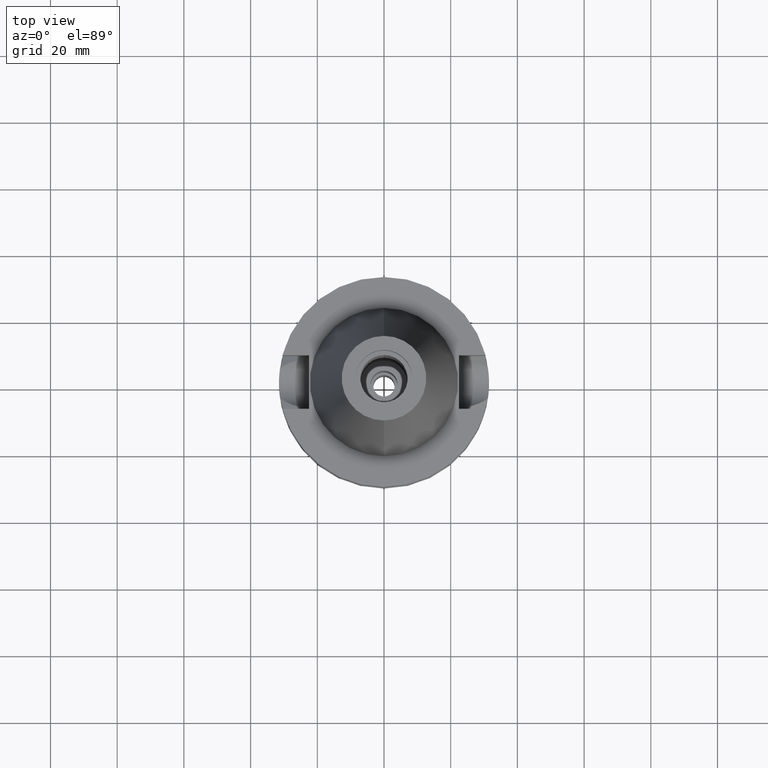
[diagram: clean part render]
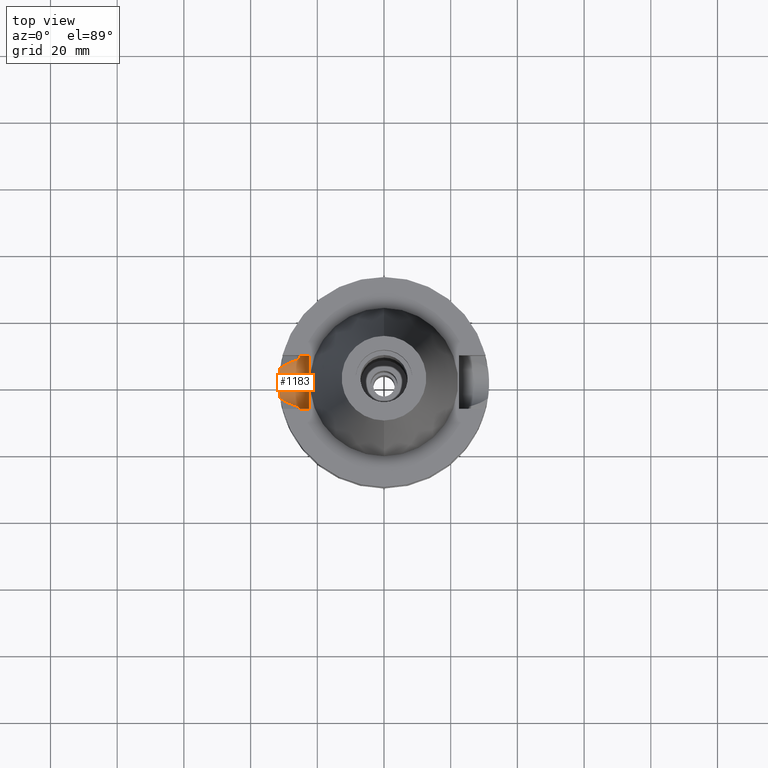
[diagram: same view with one face highlighted and labeled with its STEP entity id]
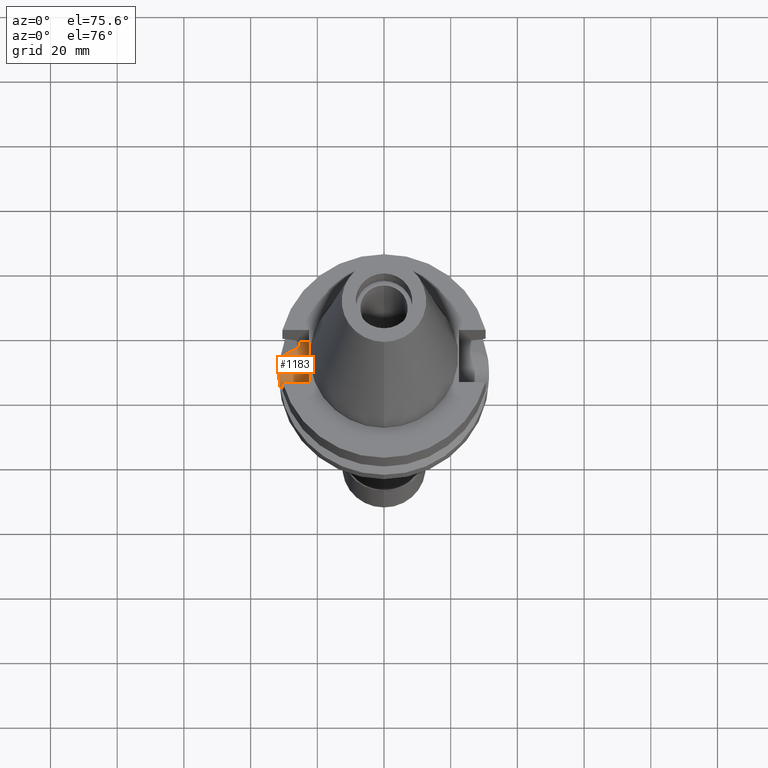
[diagram: same view with one face highlighted and labeled with its STEP entity id]
A machine part, top view. The second image highlights one B-rep face of the part: STEP entity #1183.
A second angle (auxiliary view) of the same face is appended — the face is thin or edge-on in the first view.
In plain terms, the highlighted cylindrical surface (edge-blend (fillet) strip) has radius 8.05 mm, axis along (-1, 0, 0).
Its self-contained STEP definition (entity closure, byte-faithful):
#34 = CARTESIAN_POINT ( 'NONE',  ( -25.31202500689251522, 7.845732311882787968, -16.75278555880698406 ) ) ;
#52 = CARTESIAN_POINT ( 'NONE',  ( -31.40766011978483974, 2.409778804354832271, -22.63088283290915115 ) ) ;
#69 = AXIS2_PLACEMENT_3D ( 'NONE', #1911, #2074, #151 ) ;
#89 = CARTESIAN_POINT ( 'NONE',  ( -26.75862585802038751, 6.731891531045216759, -19.37766896009286910 ) ) ;
#151 = DIRECTION ( 'NONE',  ( 0.0000000000000000000, 0.0000000000000000000, -1.000000000000000000 ) ) ;
#192 = VERTEX_POINT ( 'NONE', #3017 ) ;
#201 = CARTESIAN_POINT ( 'NONE',  ( -25.37569502941821042, -7.637838761646827734, -17.49780446132101730 ) ) ;
#215 = CARTESIAN_POINT ( 'NONE',  ( -28.98197667428420488, -5.817951271236802668, -20.51485518127156027 ) ) ;
#236 = CARTESIAN_POINT ( 'NONE',  ( -25.28048322354058541, 7.947042364867001218, -16.24399973113296980 ) ) ;
#239 = CARTESIAN_POINT ( 'NONE',  ( -31.28476021083076475, -3.750387644367529916, -22.12780550490815656 ) ) ;
#273 = VERTEX_POINT ( 'NONE', #2850 ) ;
#280 = CARTESIAN_POINT ( 'NONE',  ( -25.31950825842965358, 7.821518470898141118, -16.85441217852998008 ) ) ;
#294 = CARTESIAN_POINT ( 'NONE',  ( -31.44515274080385936, -1.858361164317119396, -22.78319744710115557 ) ) ;
#349 = ORIENTED_EDGE ( 'NONE', *, *, #2022, .T. ) ;
#386 = CARTESIAN_POINT ( 'NONE',  ( -25.48480632951354252, -7.266730117095977270, -18.43213421324911039 ) ) ;
#415 = AXIS2_PLACEMENT_3D ( 'NONE', #1358, #1137, #858 ) ;
#494 = CARTESIAN_POINT ( 'NONE',  ( -31.23235846142550187, 4.114632629751536541, -21.88338401306991088 ) ) ;
#533 = CARTESIAN_POINT ( 'NONE',  ( -27.58224659397069445, 6.427800731531676526, -19.79932023661079299 ) ) ;
#541 = CARTESIAN_POINT ( 'NONE',  ( -31.50022151539519299, 0.7527042670265144952, -23.00128393327102927 ) ) ;
#551 = DIRECTION ( 'NONE',  ( -1.000000000000000000, 1.616208268639000174E-14, -1.034373291929000154E-14 ) ) ;
#572 = CIRCLE ( 'NONE', #69, 8.050000000000000711 ) ;
#647 = B_SPLINE_CURVE_WITH_KNOTS ( 'NONE', 3,
 ( #2627, #386, #3120, #1574, #201, #2655, #3133, #1361, #1095, #944, #2800, #2640, #1427, #1112 ),
 .UNSPECIFIED., .F., .F.,
 ( 4, 2, 2, 1, 1, 2, 2, 4 ),
 ( 0.0000000000000000000, 0.2500000000000078826, 0.3750000000000104916, 0.4375000000000118794, 0.4687500000000123790, 0.4843750000000127676, 0.5000000000000131006, 1.000000000000000000 ),
 .UNSPECIFIED. ) ;
#667 = B_SPLINE_CURVE_WITH_KNOTS ( 'NONE', 3,
 ( #1728, #968, #1259, #1459, #2223, #2700, #215, #2649, #1506, #2158, #3129, #1018, #1988, #1208, #1238, #2721 ),
 .UNSPECIFIED., .F., .F.,
 ( 4, 2, 2, 1, 1, 1, 1, 2, 2, 4 ),
 ( 0.0000000000000000000, 0.2500000000000123790, 0.3750000000000178191, 0.4375000000000204836, 0.4687500000000220934, 0.4843750000000229816, 0.4921875000000237588, 0.4960937500000233147, 0.5000000000000227596, 1.000000000000000000 ),
 .UNSPECIFIED. ) ;
#675 = VERTEX_POINT ( 'NONE', #2261 ) ;
#694 = VERTEX_POINT ( 'NONE', #1085 ) ;
#716 = CARTESIAN_POINT ( 'NONE',  ( -25.31648570732018655, 7.831303109281309460, -16.81376729955617577 ) ) ;
#719 = CARTESIAN_POINT ( 'NONE',  ( -31.42485542482014438, -2.174698396615320828, -22.70097738655559283 ) ) ;
#722 = VERTEX_POINT ( 'NONE', #2026 ) ;
#749 = CARTESIAN_POINT ( 'NONE',  ( -25.29452346095227000, 7.902092865024707535, -16.48827265652634111 ) ) ;
#775 = CARTESIAN_POINT ( 'NONE',  ( -25.43786288018555197, 7.435590607957213827, -18.11653926695827721 ) ) ;
#782 = CARTESIAN_POINT ( 'NONE',  ( -31.17899877608999759, 4.485536235554000051, -21.63449434733000132 ) ) ;
#802 = ORIENTED_EDGE ( 'NONE', *, *, #2787, .T. ) ;
#818 = CARTESIAN_POINT ( 'NONE',  ( -27.84606075270387038, 6.323609409689157523, -19.93422551868223636 ) ) ;
#858 = DIRECTION ( 'NONE',  ( 0.0000000000000000000, 0.0000000000000000000, -1.000000000000000000 ) ) ;
#915 = EDGE_CURVE ( 'NONE', #192, #694, #1346, .T. ) ;
#944 = CARTESIAN_POINT ( 'NONE',  ( -25.32546393109321414, -7.802212764485837226, -16.93200521434151185 ) ) ;
#968 = CARTESIAN_POINT ( 'NONE',  ( -30.82009226135830815, -4.757827355072241637, -21.45177720827162204 ) ) ;
#971 = CARTESIAN_POINT ( 'NONE',  ( -31.17899877608999759, -4.485536235554000051, -21.63449434733000132 ) ) ;
#986 = CARTESIAN_POINT ( 'NONE',  ( -25.24772266957999989, 8.050000000000016698, -15.26991016303403903 ) ) ;
#1002 = CARTESIAN_POINT ( 'NONE',  ( -25.36814691286075529, 7.663833599064830970, -17.48802854141449359 ) ) ;
#1013 = CARTESIAN_POINT ( 'NONE',  ( -30.52682949756162145, 4.980316618954743646, -21.30247890636413999 ) ) ;
#1018 = CARTESIAN_POINT ( 'NONE',  ( -28.54967603527794751, -6.020302757045913999, -20.29401401271014649 ) ) ;
#1021 = CARTESIAN_POINT ( 'NONE',  ( -31.41089461465026389, 2.367286366836201417, -22.64408540608874176 ) ) ;
#1028 = ORIENTED_EDGE ( 'NONE', *, *, #1565, .T. ) ;
#1038 = CARTESIAN_POINT ( 'NONE',  ( -31.46145281022021933, -1.565794984135508994, -22.84878091333806083 ) ) ;
#1049 = CARTESIAN_POINT ( 'NONE',  ( -28.71169227515574462, 5.946659417446527485, -20.37642870838287124 ) ) ;
#1085 = CARTESIAN_POINT ( 'NONE',  ( -25.24772266958000344, -8.050000000000000711, -14.94999999999999929 ) ) ;
#1089 = B_SPLINE_CURVE_WITH_KNOTS ( 'NONE', 3,
 ( #782, #494, #1718, #1462, #2430, #1472, #1262, #2227, #52, #1021, #1225, #1751, #541, #2173, #2478, #1447, #1038, #294, #1272, #719, #2906, #1679, #2654, #2417, #239, #971 ),
 .UNSPECIFIED., .F., .F.,
 ( 4, 2, 2, 1, 1, 2, 2, 2, 2, 2, 1, 1, 2, 2, 4 ),
 ( 0.0000000000000000000, 0.1250000000000024980, 0.1875000000000038025, 0.2187500000000042744, 0.2343750000000045519, 0.2421875000000045797, 0.2500000000000046074, 0.4999999999999996669, 0.6249999999999971134, 0.6874999999999960032, 0.7187499999999954481, 0.7343749999999951150, 0.7421874999999952260, 0.7499999999999952260, 1.000000000000000000 ),
 .UNSPECIFIED. ) ;
#1095 = CARTESIAN_POINT ( 'NONE',  ( -25.32840508997089302, -7.792668837077992627, -16.96920308231150187 ) ) ;
#1112 = CARTESIAN_POINT ( 'NONE',  ( -25.24772266958000344, -8.050000000000000711, -14.94999999999999929 ) ) ;
#1137 = DIRECTION ( 'NONE',  ( -1.000000000000000000, 0.0000000000000000000, 0.0000000000000000000 ) ) ;
#1183 = ADVANCED_FACE ( 'NONE', ( #2565 ), #1848, .F. ) ;
#1184 = ORIENTED_EDGE ( 'NONE', *, *, #1982, .T. ) ;
#1208 = CARTESIAN_POINT ( 'NONE',  ( -27.67126230560762323, -6.417617222285051604, -19.84517710584781014 ) ) ;
#1225 = CARTESIAN_POINT ( 'NONE',  ( -31.41231540667119404, 2.348389577236963621, -22.64988387338766529 ) ) ;
#1238 = CARTESIAN_POINT ( 'NONE',  ( -26.67073193041700563, -6.784776109831391899, -19.33289109404216788 ) ) ;
#1259 = CARTESIAN_POINT ( 'NONE',  ( -30.42016768626178802, -5.025001055428695906, -21.24834098109476699 ) ) ;
#1262 = CARTESIAN_POINT ( 'NONE',  ( -31.39062877900730797, 2.624069381190340611, -22.56125769884516785 ) ) ;
#1269 = CARTESIAN_POINT ( 'NONE',  ( -31.17899877608999759, -4.485536235554000051, -21.63449434733000132 ) ) ;
#1272 = CARTESIAN_POINT ( 'NONE',  ( -31.43632894249158483, -2.004540428414186337, -22.74756759129114414 ) ) ;
#1290 = VECTOR ( 'NONE', #3086, 1000.000000000000000 ) ;
#1346 = LINE ( 'NONE', #2569, #2653 ) ;
#1358 = CARTESIAN_POINT ( 'NONE',  ( -22.50000000000000000, 1.807578675540999863E-14, -14.94999999999999929 ) ) ;
#1361 = CARTESIAN_POINT ( 'NONE',  ( -25.33288764352089828, -7.778115188377665135, -17.02509724668475144 ) ) ;
#1370 = VERTEX_POINT ( 'NONE', #2100 ) ;
#1427 = CARTESIAN_POINT ( 'NONE',  ( -25.24772266957999634, -8.049999999999981171, -15.58980474792504367 ) ) ;
#1437 = CARTESIAN_POINT ( 'NONE',  ( -22.50000000000000000, 8.050000000000000711, -14.94999999999999929 ) ) ;
#1447 = CARTESIAN_POINT ( 'NONE',  ( -31.47052282022021785, -1.370476395672973968, -22.88493220603877987 ) ) ;
#1453 = ORIENTED_EDGE ( 'NONE', *, *, #1864, .F. ) ;
#1458 = ORIENTED_EDGE ( 'NONE', *, *, #3032, .T. ) ;
#1459 = CARTESIAN_POINT ( 'NONE',  ( -29.75875373306976002, -5.412500643121705757, -20.91126207010782068 ) ) ;
#1462 = CARTESIAN_POINT ( 'NONE',  ( -31.33738737653244399, 3.198360222368641370, -22.34005842065516845 ) ) ;
#1472 = CARTESIAN_POINT ( 'NONE',  ( -31.37926297224898775, 2.754961450873857132, -22.51449235646812497 ) ) ;
#1503 = CARTESIAN_POINT ( 'NONE',  ( -28.59191736092301639, 6.001931011404575855, -20.31526717819226135 ) ) ;
#1506 = CARTESIAN_POINT ( 'NONE',  ( -28.64718377244460967, -5.975777731610904198, -20.34383416900238828 ) ) ;
#1547 = CARTESIAN_POINT ( 'NONE',  ( -29.74257483271536984, 5.456590271333096709, -20.90288794484513701 ) ) ;
#1565 = EDGE_CURVE ( 'NONE', #273, #2041, #1089, .T. ) ;
#1574 = CARTESIAN_POINT ( 'NONE',  ( -25.39161415862833593, -7.584927955220003959, -17.65164487412626215 ) ) ;
#1679 = CARTESIAN_POINT ( 'NONE',  ( -31.41618280583526612, -2.296039564199546579, -22.66565563143787898 ) ) ;
#1718 = CARTESIAN_POINT ( 'NONE',  ( -31.27862557220305462, 3.742722043627843220, -22.08823633645227957 ) ) ;
#1728 = CARTESIAN_POINT ( 'NONE',  ( -31.17899877608999759, -4.485536235554000051, -21.63449434733000132 ) ) ;
#1751 = CARTESIAN_POINT ( 'NONE',  ( -31.47163624094139678, 1.545813037668982926, -22.89189641497796757 ) ) ;
#1778 = ORIENTED_EDGE ( 'NONE', *, *, #3008, .T. ) ;
#1780 = CARTESIAN_POINT ( 'NONE',  ( -28.34955537535706327, 6.110325964351569716, -20.19148684710913955 ) ) ;
#1848 = CYLINDRICAL_SURFACE ( 'NONE', #415, 8.050000000000000711 ) ;
#1864 = EDGE_CURVE ( 'NONE', #675, #2670, #3053, .T. ) ;
#1911 = CARTESIAN_POINT ( 'NONE',  ( -22.50000000000000000, 1.807578675540999863E-14, -14.94999999999999929 ) ) ;
#1960 = CARTESIAN_POINT ( 'NONE',  ( -25.32118071774171497, 7.816100027253767735, -16.87651110713343527 ) ) ;
#1982 = EDGE_CURVE ( 'NONE', #2041, #1370, #667, .T. ) ;
#1988 = CARTESIAN_POINT ( 'NONE',  ( -28.54007796846025613, -6.024651661412615766, -20.28910980230382677 ) ) ;
#2022 = EDGE_CURVE ( 'NONE', #675, #722, #2597, .T. ) ;
#2026 = CARTESIAN_POINT ( 'NONE',  ( -25.53175183775000079, 7.097862220092999941, -18.74774300138999905 ) ) ;
#2041 = VERTEX_POINT ( 'NONE', #1269 ) ;
#2074 = DIRECTION ( 'NONE',  ( 1.000000000000000000, 0.0000000000000000000, 0.0000000000000000000 ) ) ;
#2100 = CARTESIAN_POINT ( 'NONE',  ( -25.53175183775000079, -7.097862220092999941, -18.74774300138999905 ) ) ;
#2158 = CARTESIAN_POINT ( 'NONE',  ( -28.59040356633174085, -6.001781763730767771, -20.31482365099646969 ) ) ;
#2173 = CARTESIAN_POINT ( 'NONE',  ( -31.49970254372214029, -0.3967646414649197983, -22.99934077991609271 ) ) ;
#2196 = ORIENTED_EDGE ( 'NONE', *, *, #915, .F. ) ;
#2223 = CARTESIAN_POINT ( 'NONE',  ( -29.52802790024787427, -5.539450466191617295, -20.79359049476176935 ) ) ;
#2227 = CARTESIAN_POINT ( 'NONE',  ( -31.40272526137857767, 2.473697298115463905, -22.61073334995159101 ) ) ;
#2232 = CARTESIAN_POINT ( 'NONE',  ( -28.22569286092818786, 6.164055649489793787, -20.12821667631252254 ) ) ;
#2261 = CARTESIAN_POINT ( 'NONE',  ( -25.24772266958000344, 8.050000000000000711, -14.94999999999999929 ) ) ;
#2417 = CARTESIAN_POINT ( 'NONE',  ( -31.36264905563698591, -3.014358806208660368, -22.44718208696051320 ) ) ;
#2430 = CARTESIAN_POINT ( 'NONE',  ( -31.35520150100276027, 3.019105664686642321, -22.41477928762258642 ) ) ;
#2463 = CARTESIAN_POINT ( 'NONE',  ( -25.27268309164520232, 7.971812745166494629, -16.08115051879740420 ) ) ;
#2478 = CARTESIAN_POINT ( 'NONE',  ( -31.49234274138752099, -0.7854672021353261702, -22.97128168913690160 ) ) ;
#2565 = FACE_OUTER_BOUND ( 'NONE', #2817, .T. ) ;
#2569 = CARTESIAN_POINT ( 'NONE',  ( -22.50000000000000000, -8.050000000000000711, -14.94999999999999929 ) ) ;
#2597 = B_SPLINE_CURVE_WITH_KNOTS ( 'NONE', 3,
 ( #2887, #986, #2923, #2463, #236, #749, #2688, #34, #716, #280, #1960, #1002, #775, #2936 ),
 .UNSPECIFIED., .F., .F.,
 ( 4, 2, 2, 1, 1, 2, 2, 4 ),
 ( 0.0000000000000000000, 0.2500000000000326406, 0.3750000000000489608, 0.4375000000000558997, 0.4687500000000580647, 0.4843750000000578426, 0.5000000000000576206, 1.000000000000000000 ),
 .UNSPECIFIED. ) ;
#2627 = CARTESIAN_POINT ( 'NONE',  ( -25.53175183775000079, -7.097862220092999941, -18.74774300138999905 ) ) ;
#2636 = CARTESIAN_POINT ( 'NONE',  ( -25.24772266958000344, 8.050000000000000711, -14.94999999999999929 ) ) ;
#2640 = CARTESIAN_POINT ( 'NONE',  ( -25.27267964220302687, -7.973335156090203490, -16.24499043090339256 ) ) ;
#2649 = CARTESIAN_POINT ( 'NONE',  ( -28.75990299397924588, -5.923509104994071350, -20.40142089390501567 ) ) ;
#2653 = VECTOR ( 'NONE', #551, 1000.000000000000000 ) ;
#2654 = CARTESIAN_POINT ( 'NONE',  ( -31.41422831847335573, -2.322627319832506032, -22.65768333609983287 ) ) ;
#2655 = CARTESIAN_POINT ( 'NONE',  ( -25.35408242307545734, -7.708967323044883635, -17.26962711286457974 ) ) ;
#2670 = VERTEX_POINT ( 'NONE', #1437 ) ;
#2688 = CARTESIAN_POINT ( 'NONE',  ( -25.30212858955025723, 7.877670097774115199, -16.61040846292341655 ) ) ;
#2700 = CARTESIAN_POINT ( 'NONE',  ( -29.16655737837822571, -5.725797619609179989, -20.60909727374806266 ) ) ;
#2717 = CARTESIAN_POINT ( 'NONE',  ( -26.16664102105241696, 6.923342062867160251, -19.07391568610027122 ) ) ;
#2721 = CARTESIAN_POINT ( 'NONE',  ( -25.53175183775000079, -7.097862220092999941, -18.74774300138999905 ) ) ;
#2753 = CARTESIAN_POINT ( 'NONE',  ( -31.17899877608999759, 4.485536235554000051, -21.63449434733000132 ) ) ;
#2769 = CARTESIAN_POINT ( 'NONE',  ( -25.53175183775000079, 7.097862220092999941, -18.74774300138999905 ) ) ;
#2787 = EDGE_CURVE ( 'NONE', #722, #273, #2980, .T. ) ;
#2800 = CARTESIAN_POINT ( 'NONE',  ( -25.32415339823800693, -7.806463147615998466, -16.91521530250347283 ) ) ;
#2817 = EDGE_LOOP ( 'NONE', ( #1778, #2196, #1458, #1453, #349, #802, #1028, #1184 ) ) ;
#2850 = CARTESIAN_POINT ( 'NONE',  ( -31.17899877608999759, 4.485536235554000051, -21.63449434733000132 ) ) ;
#2887 = CARTESIAN_POINT ( 'NONE',  ( -25.24772266958000344, 8.050000000000000711, -14.94999999999999929 ) ) ;
#2906 = CARTESIAN_POINT ( 'NONE',  ( -31.41968554160942517, -2.247518550622002564, -22.67992883977067820 ) ) ;
#2923 = CARTESIAN_POINT ( 'NONE',  ( -25.25396277509630139, 8.030907860997638537, -15.59359823559724312 ) ) ;
#2936 = CARTESIAN_POINT ( 'NONE',  ( -25.53175183775000079, 7.097862220092999941, -18.74774300138999905 ) ) ;
#2980 = B_SPLINE_CURVE_WITH_KNOTS ( 'NONE', 3,
 ( #2769, #2717, #89, #533, #818, #2232, #1780, #1503, #1049, #1547, #1013, #2753 ),
 .UNSPECIFIED., .F., .F.,
 ( 4, 2, 2, 2, 2, 4 ),
 ( 0.0000000000000000000, 0.2500000000000017764, 0.3750000000000023870, 0.4375000000000017764, 0.5000000000000011102, 1.000000000000000000 ),
 .UNSPECIFIED. ) ;
#3008 = EDGE_CURVE ( 'NONE', #1370, #694, #647, .T. ) ;
#3017 = CARTESIAN_POINT ( 'NONE',  ( -22.50000000000000000, -8.050000000000000711, -14.94999999999999929 ) ) ;
#3032 = EDGE_CURVE ( 'NONE', #192, #2670, #572, .T. ) ;
#3053 = LINE ( 'NONE', #2636, #1290 ) ;
#3086 = DIRECTION ( 'NONE',  ( 1.000000000000000000, 1.616208268639000174E-14, -2.779878222057999939E-14 ) ) ;
#3120 = CARTESIAN_POINT ( 'NONE',  ( -25.44390372120356858, -7.408325733685588332, -18.11690357773887072 ) ) ;
#3129 = CARTESIAN_POINT ( 'NONE',  ( -28.56597906470934944, -6.012898140315923179, -20.30234406673584502 ) ) ;
#3133 = CARTESIAN_POINT ( 'NONE',  ( -25.34384264177218782, -7.742472632730389215, -17.15618260506330017 ) ) ;